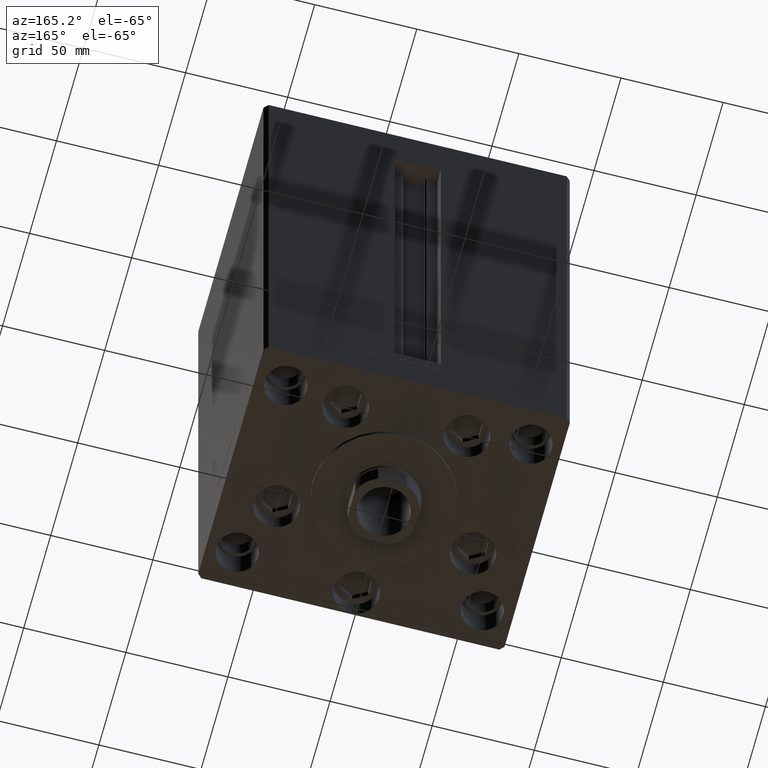
[diagram: clean part render]
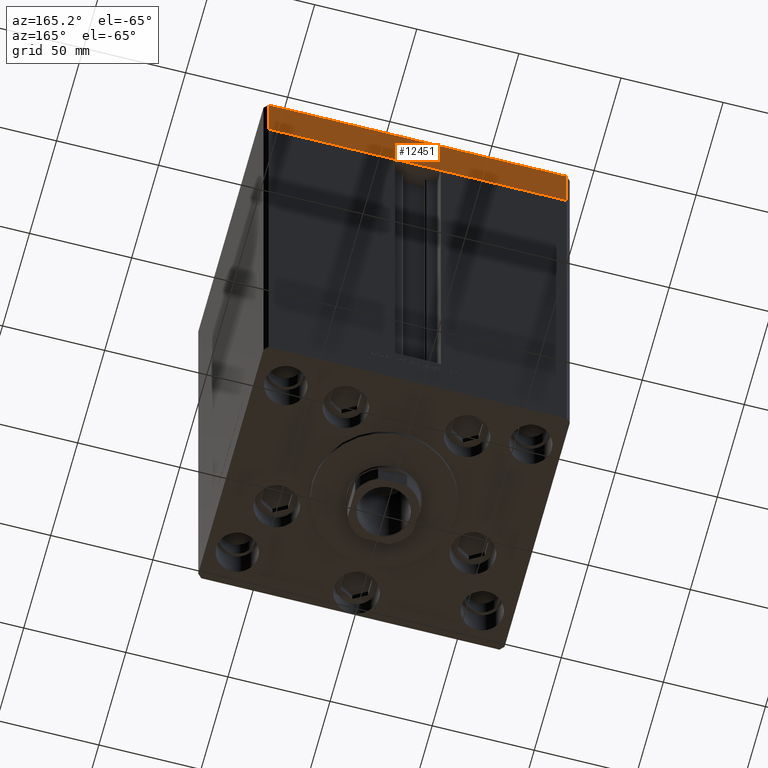
[diagram: same view with one face highlighted and labeled with its STEP entity id]
A machine part, auxiliary view. The second image highlights one B-rep face of the part: STEP entity #12451.
In plain terms, the highlighted planar face has unit normal (-0, 1, 0).
Its self-contained STEP definition (entity closure, byte-faithful):
#687 = CARTESIAN_POINT ( 'NONE',  ( 72.99999999999992895, 62.50000000000001421, -27.00000000000000000 ) ) ;
#4682 = DIRECTION ( 'NONE',  ( 0.000000000000000000, 0.000000000000000000, 1.000000000000000000 ) ) ;
#5766 = LINE ( 'NONE', #36004, #47940 ) ;
#7275 = ORIENTED_EDGE ( 'NONE', *, *, #24369, .T. ) ;
#8219 = VECTOR ( 'NONE', #32571, 1000.000000000000000 ) ;
#8625 = LINE ( 'NONE', #24652, #8219 ) ;
#9796 = VECTOR ( 'NONE', #4682, 1000.000000000000000 ) ;
#10351 = EDGE_CURVE ( 'NONE', #12955, #43696, #5766, .T. ) ;
#12312 = CARTESIAN_POINT ( 'NONE',  ( -73.00000000000001421, 62.49999999999998579, 0.000000000000000000 ) ) ;
#12451 = ADVANCED_FACE ( 'NONE', ( #33458 ), #48530, .T. ) ;
#12955 = VERTEX_POINT ( 'NONE', #687 ) ;
#16927 = DIRECTION ( 'NONE',  ( -1.000000000000000000, -1.901066822988282689E-16, 0.000000000000000000 ) ) ;
#17609 = DIRECTION ( 'NONE',  ( -1.901066822988282936E-16, 1.000000000000000000, 0.000000000000000000 ) ) ;
#19005 = CARTESIAN_POINT ( 'NONE',  ( 72.99999999999992895, 62.50000000000001421, 0.000000000000000000 ) ) ;
#19332 = VERTEX_POINT ( 'NONE', #12312 ) ;
#21116 = LINE ( 'NONE', #39939, #9796 ) ;
#21527 = EDGE_CURVE ( 'NONE', #12955, #37221, #8625, .T. ) ;
#21594 = DIRECTION ( 'NONE',  ( -1.000000000000000000, -1.901066822988282689E-16, 0.000000000000000000 ) ) ;
#21845 = LINE ( 'NONE', #48321, #29623 ) ;
#22036 = EDGE_CURVE ( 'NONE', #37221, #19332, #21845, .T. ) ;
#23270 = ORIENTED_EDGE ( 'NONE', *, *, #21527, .F. ) ;
#24369 = EDGE_CURVE ( 'NONE', #43696, #19332, #21116, .T. ) ;
#24652 = CARTESIAN_POINT ( 'NONE',  ( 72.99999999999992895, 62.50000000000001421, -27.00000000000000000 ) ) ;
#25044 = CARTESIAN_POINT ( 'NONE',  ( 72.99999999999992895, 62.50000000000001421, -27.00000000000000000 ) ) ;
#25675 = ORIENTED_EDGE ( 'NONE', *, *, #22036, .F. ) ;
#29623 = VECTOR ( 'NONE', #21594, 1000.000000000000000 ) ;
#32571 = DIRECTION ( 'NONE',  ( 0.000000000000000000, 0.000000000000000000, 1.000000000000000000 ) ) ;
#32719 = DIRECTION ( 'NONE',  ( -1.000000000000000000, -1.901066822988282936E-16, 0.000000000000000000 ) ) ;
#33458 = FACE_OUTER_BOUND ( 'NONE', #44003, .T. ) ;
#35774 = CARTESIAN_POINT ( 'NONE',  ( -73.00000000000001421, 62.49999999999998579, -27.00000000000000000 ) ) ;
#36004 = CARTESIAN_POINT ( 'NONE',  ( 72.99999999999992895, 62.50000000000001421, -27.00000000000000000 ) ) ;
#37221 = VERTEX_POINT ( 'NONE', #19005 ) ;
#38416 = AXIS2_PLACEMENT_3D ( 'NONE', #25044, #17609, #32719 ) ;
#39939 = CARTESIAN_POINT ( 'NONE',  ( -73.00000000000001421, 62.49999999999998579, -27.00000000000000000 ) ) ;
#43696 = VERTEX_POINT ( 'NONE', #35774 ) ;
#44003 = EDGE_LOOP ( 'NONE', ( #25675, #23270, #45330, #7275 ) ) ;
#45330 = ORIENTED_EDGE ( 'NONE', *, *, #10351, .T. ) ;
#47940 = VECTOR ( 'NONE', #16927, 1000.000000000000000 ) ;
#48321 = CARTESIAN_POINT ( 'NONE',  ( 72.99999999999992895, 62.50000000000001421, 0.000000000000000000 ) ) ;
#48530 = PLANE ( 'NONE',  #38416 ) ;